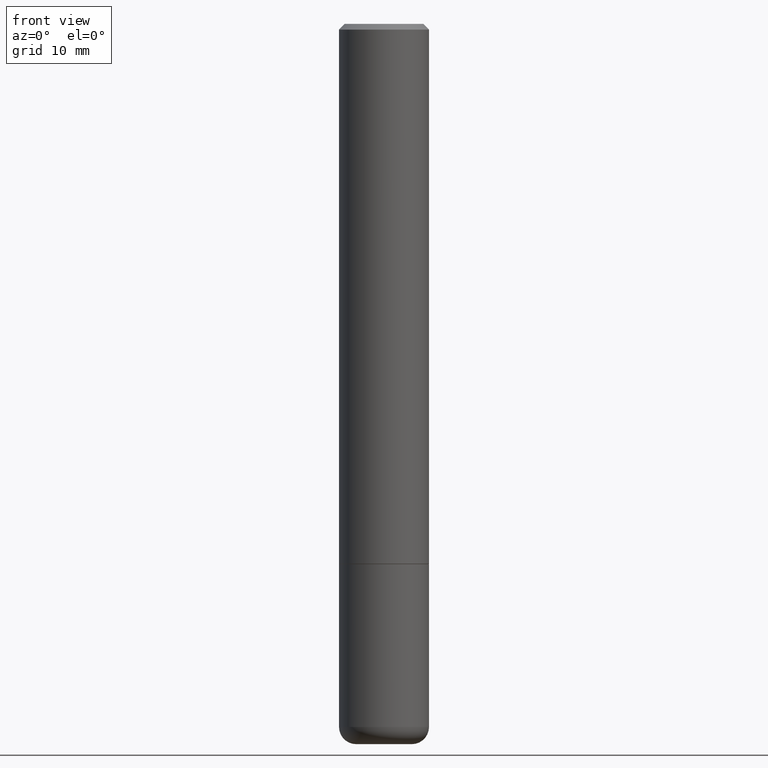
[diagram: clean part render]
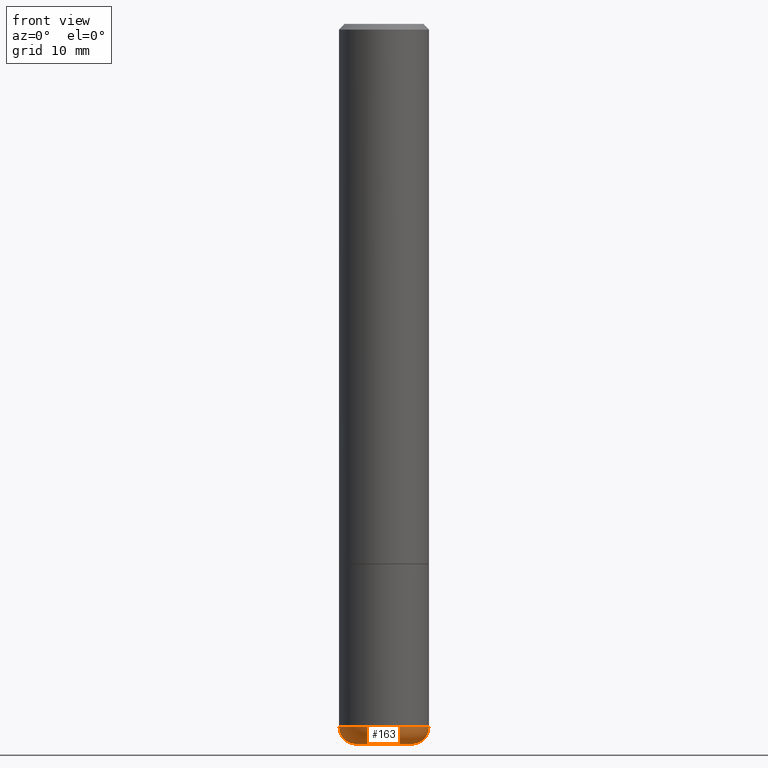
[diagram: same view with one face highlighted and labeled with its STEP entity id]
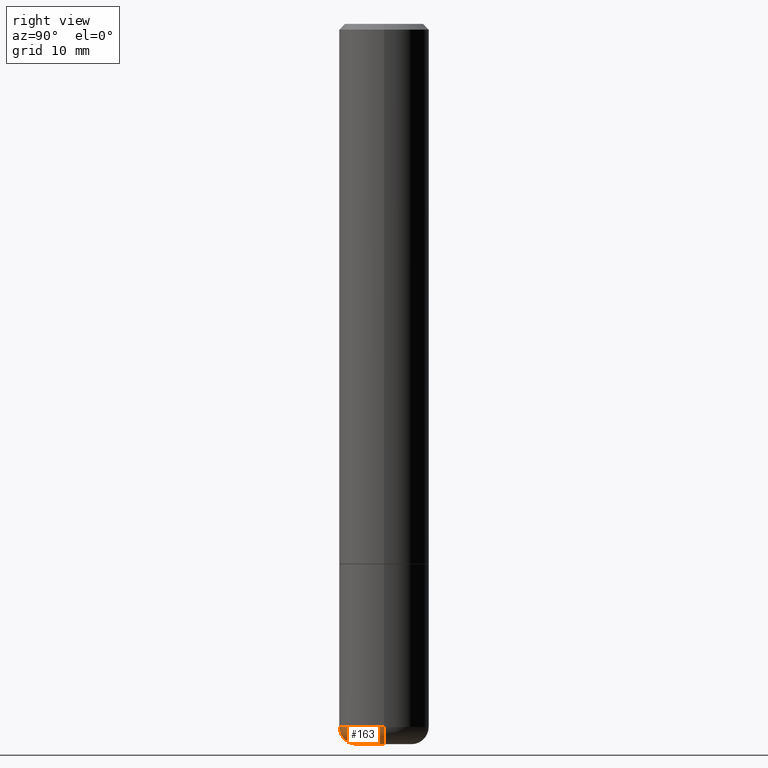
[diagram: same view with one face highlighted and labeled with its STEP entity id]
A machine part, front view. The second image highlights one B-rep face of the part: STEP entity #163.
A second angle (right view) of the same face is appended — the face is thin or edge-on in the first view.
In plain terms, the highlighted toroidal blend (fillet) surface has major radius 2.4447 mm and minor (blend) radius 1.524 mm.
Its self-contained STEP definition (entity closure, byte-faithful):
#3 = VERTEX_POINT ( 'NONE', #11 ) ;
#8 = EDGE_LOOP ( 'NONE', ( #352, #365, #357, #228 ) ) ;
#11 = CARTESIAN_POINT ( 'NONE',  ( -0.1562500000000001110, -7.408991442152118508E-15, -2.440000000000000391 ) ) ;
#13 = EDGE_CURVE ( 'NONE', #300, #414, #249, .T. ) ;
#51 = AXIS2_PLACEMENT_3D ( 'NONE', #386, #297, #167 ) ;
#58 = CARTESIAN_POINT ( 'NONE',  ( 0.1562500000000001110, -9.610302385165753433E-15, -2.440000000000000391 ) ) ;
#75 = CIRCLE ( 'NONE', #226, 0.09625000000000000222 ) ;
#79 = DIRECTION ( 'NONE',  ( 1.000000000000000000, -6.982962677686265922E-15, 4.883557194083112340E-29 ) ) ;
#85 = DIRECTION ( 'NONE',  ( 1.000000000000000000, -6.982962677686269077E-15, 0.000000000000000000 ) ) ;
#87 = CIRCLE ( 'NONE', #149, 0.06000000000000021289 ) ;
#93 = EDGE_CURVE ( 'NONE', #95, #3, #87, .T. ) ;
#95 = VERTEX_POINT ( 'NONE', #310 ) ;
#113 = DIRECTION ( 'NONE',  ( -2.445468806185136597E-29, 3.491481338843145583E-15, 1.000000000000000000 ) ) ;
#149 = AXIS2_PLACEMENT_3D ( 'NONE', #273, #398, #314 ) ;
#159 = CARTESIAN_POINT ( 'NONE',  ( 0.09625000000000000222, -9.400813504835169849E-15, -2.500000000000000444 ) ) ;
#163 = ADVANCED_FACE ( 'NONE', ( #189 ), #339, .T. ) ;
#167 = DIRECTION ( 'NONE',  ( 1.000000000000000000, -6.982962677686262766E-15, 0.000000000000000000 ) ) ;
#170 = AXIS2_PLACEMENT_3D ( 'NONE', #171, #210, #368 ) ;
#171 = CARTESIAN_POINT ( 'NONE',  ( 0.09625000000000000222, -9.191324624504578377E-15, -2.440000000000000391 ) ) ;
#189 = FACE_OUTER_BOUND ( 'NONE', #8, .T. ) ;
#210 = DIRECTION ( 'NONE',  ( -6.982962677686266711E-15, -1.000000000000000000, 3.491481338843145583E-15 ) ) ;
#226 = AXIS2_PLACEMENT_3D ( 'NONE', #382, #356, #85 ) ;
#228 = ORIENTED_EDGE ( 'NONE', *, *, #296, .F. ) ;
#249 = CIRCLE ( 'NONE', #170, 0.06000000000000021289 ) ;
#273 = CARTESIAN_POINT ( 'NONE',  ( -0.09625000000000000222, -7.835317083608178998E-15, -2.440000000000000391 ) ) ;
#281 = EDGE_CURVE ( 'NONE', #95, #300, #75, .T. ) ;
#296 = EDGE_CURVE ( 'NONE', #3, #414, #316, .T. ) ;
#297 = DIRECTION ( 'NONE',  ( -2.445468806185136597E-29, 3.491481338843145583E-15, 1.000000000000000000 ) ) ;
#300 = VERTEX_POINT ( 'NONE', #159 ) ;
#310 = CARTESIAN_POINT ( 'NONE',  ( -0.09625000000000000222, -7.726898703045442122E-15, -2.500000000000000444 ) ) ;
#314 = DIRECTION ( 'NONE',  ( -1.000000000000000000, 7.105427357600997914E-15, 0.000000000000000000 ) ) ;
#316 = CIRCLE ( 'NONE', #51, 0.1562500000000000000 ) ;
#339 = TOROIDAL_SURFACE ( 'NONE', #393, 0.09625000000000000222, 0.06000000000000023370 ) ;
#352 = ORIENTED_EDGE ( 'NONE', *, *, #93, .F. ) ;
#356 = DIRECTION ( 'NONE',  ( -2.445468806185136597E-29, 3.491481338843145583E-15, 1.000000000000000000 ) ) ;
#357 = ORIENTED_EDGE ( 'NONE', *, *, #13, .T. ) ;
#365 = ORIENTED_EDGE ( 'NONE', *, *, #281, .T. ) ;
#368 = DIRECTION ( 'NONE',  ( 1.000000000000000000, -6.982962677686275388E-15, 0.000000000000000000 ) ) ;
#382 = CARTESIAN_POINT ( 'NONE',  ( 6.113672015462842613E-29, -8.728703347107866520E-15, -2.500000000000000444 ) ) ;
#386 = CARTESIAN_POINT ( 'NONE',  ( 5.966943887091733341E-29, -8.519214466777275048E-15, -2.440000000000000391 ) ) ;
#393 = AXIS2_PLACEMENT_3D ( 'NONE', #409, #113, #79 ) ;
#398 = DIRECTION ( 'NONE',  ( 7.105427357601001859E-15, 1.000000000000000000, -3.491481338843145583E-15 ) ) ;
#409 = CARTESIAN_POINT ( 'NONE',  ( 5.966943887091733341E-29, -8.519214466777275048E-15, -2.440000000000000391 ) ) ;
#414 = VERTEX_POINT ( 'NONE', #58 ) ;